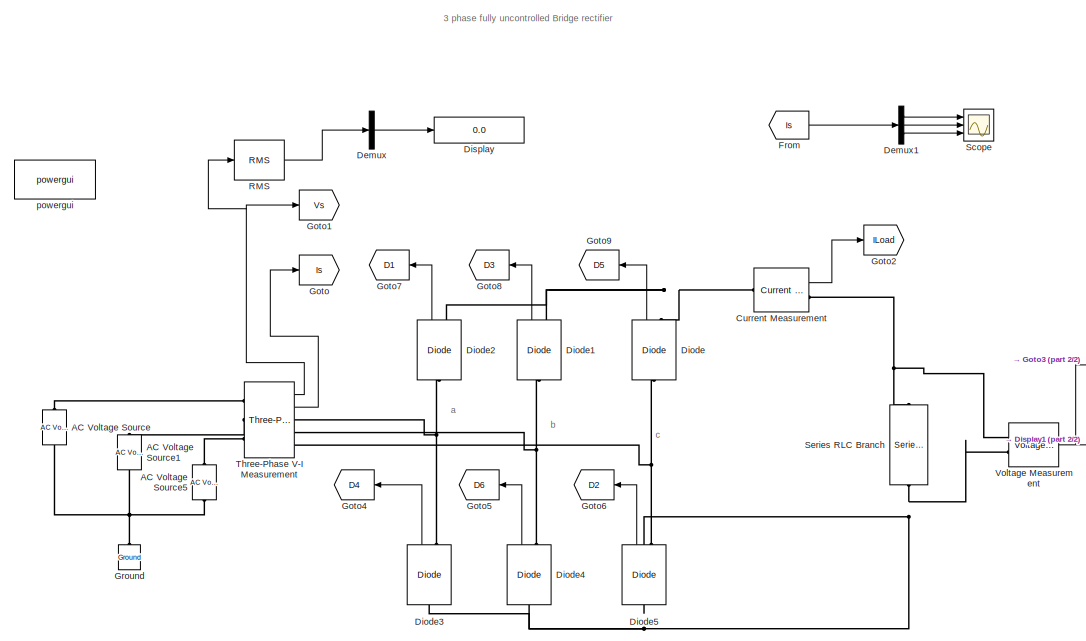
[diagram: root canvas - part 1/2, center side, full height]
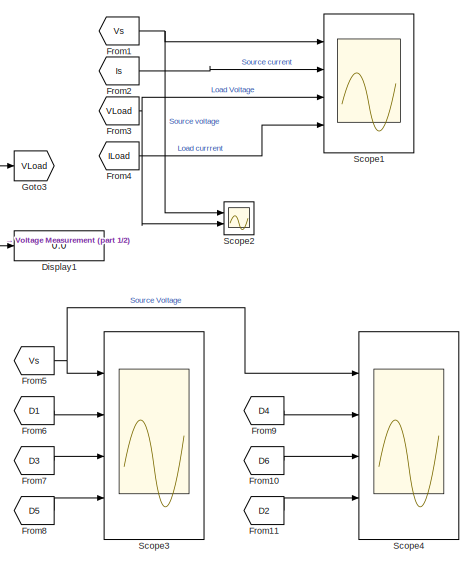
[diagram: root canvas - part 2/2, middle right region]
MODEL slx_1936cea522eb
KIND model
CONFIG AbsTol = auto
CONFIG EnableMultiTasking = off
CONFIG FixedStep = auto
CONFIG MaxStep = auto
CONFIG MinStep = auto
CONFIG RelTol = 1e-3
CONFIG SampleTimeConstraint = Unconstrained
CONFIG SolverName = VariableStepAuto
CONFIG StartTime = 0.0
CONFIG StopTime = 0.1
BLOCK [Reference] AC Voltage Source  REF=spsACVoltageSourceLib/AC Voltage Source
  NameLocation = right
  Ports = [0, 0, 0, 0, 0, 1, 1]
  SourceBlock = spsACVoltageSourceLib/AC Voltage Source
  SourceProductBaseCode = PS
  SourceType = AC Voltage Source
BLOCK [Reference] AC Voltage Source1  REF=spsACVoltageSourceLib/AC Voltage Source
  NameLocation = right
  Ports = [0, 0, 0, 0, 0, 1, 1]
  SourceBlock = spsACVoltageSourceLib/AC Voltage Source
  SourceProductBaseCode = PS
  SourceType = AC Voltage Source
BLOCK [Reference] AC Voltage Source5  REF=spsACVoltageSourceLib/AC Voltage Source
  NameLocation = right
  Ports = [0, 0, 0, 0, 0, 1, 1]
  SourceBlock = spsACVoltageSourceLib/AC Voltage Source
  SourceProductBaseCode = PS
  SourceType = AC Voltage Source
BLOCK [Reference] Current Measurement  REF=spsCurrentMeasurementLib/Current Measurement
  Ports = [0, 1, 0, 0, 0, 1, 1]
  SourceBlock = spsCurrentMeasurementLib/Current Measurement
  SourceProductBaseCode = PS
  SourceType = Current Measurement
  UserDataPersistent = on
BLOCK [Demux] Demux
  Outputs = 1
  Ports = [1, 1]
BLOCK [Demux] Demux1
  Outputs = 3
  Ports = [1, 3]
BLOCK [Reference] Diode  REF=spsDiodeLib/Diode
  NameLocation = right
  Ports = [0, 1, 0, 0, 0, 1, 1]
  SourceBlock = spsDiodeLib/Diode
  SourceProductBaseCode = PS
  SourceType = Diode
BLOCK [Reference] Diode1  REF=spsDiodeLib/Diode
  NameLocation = right
  Ports = [0, 1, 0, 0, 0, 1, 1]
  SourceBlock = spsDiodeLib/Diode
  SourceProductBaseCode = PS
  SourceType = Diode
BLOCK [Reference] Diode2  REF=spsDiodeLib/Diode
  NameLocation = right
  Ports = [0, 1, 0, 0, 0, 1, 1]
  SourceBlock = spsDiodeLib/Diode
  SourceProductBaseCode = PS
  SourceType = Diode
BLOCK [Reference] Diode3  REF=spsDiodeLib/Diode
  NameLocation = right
  Ports = [0, 1, 0, 0, 0, 1, 1]
  SourceBlock = spsDiodeLib/Diode
  SourceProductBaseCode = PS
  SourceType = Diode
BLOCK [Reference] Diode4  REF=spsDiodeLib/Diode
  NameLocation = right
  Ports = [0, 1, 0, 0, 0, 1, 1]
  SourceBlock = spsDiodeLib/Diode
  SourceProductBaseCode = PS
  SourceType = Diode
BLOCK [Reference] Diode5  REF=spsDiodeLib/Diode
  NameLocation = right
  Ports = [0, 1, 0, 0, 0, 1, 1]
  SourceBlock = spsDiodeLib/Diode
  SourceProductBaseCode = PS
  SourceType = Diode
BLOCK [Display] Display
  Decimation = 1
  Ports = [1]
BLOCK [Display] Display1
  Decimation = 1
  Ports = [1]
BLOCK [From] From
  GotoTag = Is
BLOCK [From] From1
  GotoTag = Vs
BLOCK [From] From10
  GotoTag = D6
BLOCK [From] From11
  GotoTag = D2
BLOCK [From] From2
  GotoTag = Is
BLOCK [From] From3
  GotoTag = VLoad
BLOCK [From] From4
  GotoTag = ILoad
BLOCK [From] From5
  GotoTag = Vs
BLOCK [From] From6
  GotoTag = D1
BLOCK [From] From7
  GotoTag = D3
BLOCK [From] From8
  GotoTag = D5
BLOCK [From] From9
  GotoTag = D4
BLOCK [Goto] Goto
  GotoTag = Is
BLOCK [Goto] Goto1
  GotoTag = Vs
BLOCK [Goto] Goto2
  GotoTag = ILoad
BLOCK [Goto] Goto3
  GotoTag = VLoad
BLOCK [Goto] Goto4
  GotoTag = D4
  NameLocation = top
BLOCK [Goto] Goto5
  GotoTag = D6
  NameLocation = top
BLOCK [Goto] Goto6
  GotoTag = D2
  NameLocation = top
BLOCK [Goto] Goto7
  GotoTag = D1
  NameLocation = top
BLOCK [Goto] Goto8
  GotoTag = D3
  NameLocation = top
BLOCK [Goto] Goto9
  GotoTag = D5
  NameLocation = top
BLOCK [Reference] Ground  REF=spsGroundLib/Ground
  NameLocation = right
  Ports = [0, 0, 0, 0, 0, 1]
  SourceBlock = spsGroundLib/Ground
  SourceProductBaseCode = PS
  SourceType = Ground
BLOCK [Reference] RMS  REF=spsRMSLib/RMS
  Ports = [1, 1]
  SourceBlock = spsRMSLib/RMS
  SourceProductBaseCode = PS
  SourceType = RMS
BLOCK [Scope] Scope
  Floating = off
  NumInputPorts = 3
  Ports = [3]
  ScopeSpecificationString = Simulink.scopes.TimeScopeBlockCfg('CurrentConfiguration', extmgr.ConfigurationSet(extmgr.Configuration('Core','General UI',true),extmgr.Configuration('Core','Source UI',true),extmgr.Configuration('Sources','WiredSimulink',true),extmgr.Configuration('Visuals','Time Domain',true,'SerializedDisplays',{struct('MinYLimReal','-16.25872','MaxYLimReal','146.19118','YLabelReal','','MinYLimMag','0.00000','M...<+3398ch>
BLOCK [Scope] Scope1
  Floating = off
  NumInputPorts = 4
  Ports = [4]
  ScopeSpecificationString = Simulink.scopes.TimeScopeBlockCfg('CurrentConfiguration', extmgr.ConfigurationSet(extmgr.Configuration('Core','General UI',true),extmgr.Configuration('Core','Source UI',true),extmgr.Configuration('Sources','WiredSimulink',true,'DataLoggingVariableName','ScopeData1'),extmgr.Configuration('Visuals','Time Domain',true,'SerializedDisplays',{struct('MinYLimReal','-408.24761','MaxYLimReal','408.2424','Y...<+3580ch>
BLOCK [Scope] Scope2
  Floating = off
  NumInputPorts = 2
  Ports = [2]
  ScopeSpecificationString = Simulink.scopes.TimeScopeBlockCfg('CurrentConfiguration', extmgr.ConfigurationSet(extmgr.Configuration('Core','General UI',true),extmgr.Configuration('Core','Source UI',true),extmgr.Configuration('Sources','WiredSimulink',true,'DataLoggingVariableName','ScopeData2'),extmgr.Configuration('Visuals','Time Domain',true,'SerializedDisplays',{struct('MinYLimReal','-234.74202','MaxYLimReal','234.73612','...<+2002ch>
BLOCK [Scope] Scope3
  Floating = off
  NumInputPorts = 4
  Ports = [4]
  ScopeSpecificationString = Simulink.scopes.TimeScopeBlockCfg('CurrentConfiguration', extmgr.ConfigurationSet(extmgr.Configuration('Core','General UI',true),extmgr.Configuration('Core','Source UI',true),extmgr.Configuration('Sources','WiredSimulink',true,'DataLoggingVariableName','ScopeData1'),extmgr.Configuration('Visuals','Time Domain',true,'SerializedDisplays',{struct('MinYLimReal','-406.58637','MaxYLimReal','406.58637','...<+3605ch>
BLOCK [Scope] Scope4
  Floating = off
  NumInputPorts = 4
  Ports = [4]
  ScopeSpecificationString = Simulink.scopes.TimeScopeBlockCfg('CurrentConfiguration', extmgr.ConfigurationSet(extmgr.Configuration('Core','General UI',true),extmgr.Configuration('Core','Source UI',true),extmgr.Configuration('Sources','WiredSimulink',true,'DataLoggingVariableName','ScopeData2'),extmgr.Configuration('Visuals','Time Domain',true,'SerializedDisplays',{struct('MinYLimReal','-10','MaxYLimReal','10','YLabelReal',''...<+1317ch>
BLOCK [Reference] Series RLC Branch  REF=spsSeriesRLCBranchLib/Series RLC Branch
  NameLocation = left
  Ports = [0, 0, 0, 0, 0, 1, 1]
  SourceBlock = spsSeriesRLCBranchLib/Series RLC Branch
  SourceProductBaseCode = PS
  SourceType = Series RLC Branch
BLOCK [Reference] Three-Phase V-I Measurement  REF=spsThreePhaseVIMeasurementLib/Three-Phase
V-I Measurement
  Ports = [0, 2, 0, 0, 0, 3, 3]
  SourceBlock = spsThreePhaseVIMeasurementLib/Three-Phase\nV-I Measurement
  SourceProductBaseCode = PS
  SourceType = Three-Phase VI Measurement
BLOCK [Reference] Voltage Measurement  REF=spsVoltageMeasurementLib/Voltage Measurement
  Ports = [0, 1, 0, 0, 0, 2]
  SourceBlock = spsVoltageMeasurementLib/Voltage Measurement
  SourceProductBaseCode = PS
  SourceType = Voltage Measurement
  UserDataPersistent = on
BLOCK [Reference] powergui  REF=spspowerguiLib/powergui
  Ports = []
  Priority = 1
  SourceBlock = spspowerguiLib/powergui
  SourceProductBaseCode = PS
  SourceType = PSB option menu block
ANNOTATION (root): b
ANNOTATION (root): c
ANNOTATION (root): 3 phase fully uncontrolled Bridge rectifier
ANNOTATION (root): a
LINE Current Measurement:1 -> Goto2:1
LINE Demux1:1 -> Scope:1
LINE Demux1:2 -> Scope:2
LINE Demux1:3 -> Scope:3
LINE Demux:1 -> Display:1
LINE Diode1:1 -> Goto8:1
LINE Diode2:1 -> Goto7:1
LINE Diode3:1 -> Goto4:1
LINE Diode4:1 -> Goto5:1
LINE Diode5:1 -> Goto6:1
LINE Diode:1 -> Goto9:1
LINE From10:1 -> Scope4:3
LINE From11:1 -> Scope4:4
NET From1:1 -> Scope1:1, Scope2:1
LINE From2:1 -> Scope1:2
NET From3:1 -> Scope1:3, Scope2:2
LINE From4:1 -> Scope1:4
NET From5:1 -> Scope3:1, Scope4:1
LINE From6:1 -> Scope3:2
LINE From7:1 -> Scope3:3
LINE From8:1 -> Scope3:4
LINE From9:1 -> Scope4:2
LINE From:1 -> Demux1:1
LINE RMS:1 -> Demux:1
NET Three-Phase V-I Measurement:1 -> Goto1:1, RMS:1
LINE Three-Phase V-I Measurement:2 -> Goto:1
NET Voltage Measurement:1 -> Display1:1, Goto3:1
PNET net1: AC Voltage Source1:LConn1 -- AC Voltage Source5:LConn1 -- AC Voltage Source:LConn1 -- Ground:LConn1
PLINE AC Voltage Source1:RConn1 -- Three-Phase V-I Measurement:LConn2
PLINE AC Voltage Source5:RConn1 -- Three-Phase V-I Measurement:LConn3
PLINE AC Voltage Source:RConn1 -- Three-Phase V-I Measurement:LConn1
PNET net2: Current Measurement:LConn1 -- Diode1:RConn1 -- Diode2:RConn1 -- Diode:RConn1
PNET net3: Current Measurement:RConn1 -- Series RLC Branch:LConn1 -- Voltage Measurement:LConn1
PNET net4: Diode1:LConn1 -- Diode4:RConn1 -- Three-Phase V-I Measurement:RConn2
PNET net5: Diode2:LConn1 -- Diode3:RConn1 -- Three-Phase V-I Measurement:RConn1
PNET net6: Diode3:LConn1 -- Diode4:LConn1 -- Diode5:LConn1 -- Series RLC Branch:RConn1 -- Voltage Measurement:LConn2
PNET net7: Diode5:RConn1 -- Diode:LConn1 -- Three-Phase V-I Measurement:RConn3
note: NET lines group one-source signal fan-out (src -> all destinations, sorted); 1:1 wires keep LINE; PNET lines group multi-terminal physical nets as a canonical sorted terminal list (undirected conserving connections); 2-terminal nets keep the pairwise PLINE form
